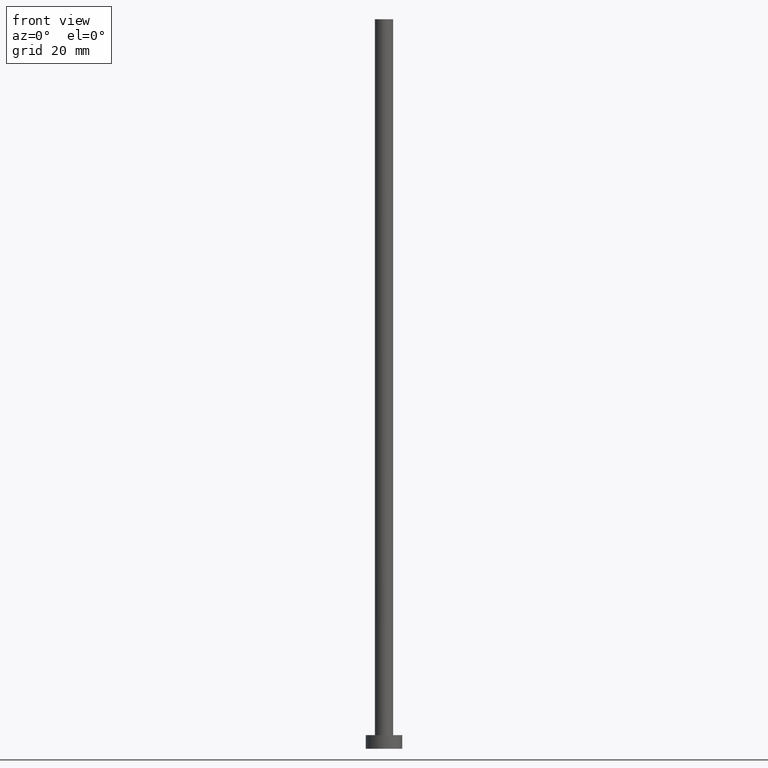
[diagram: clean part render]
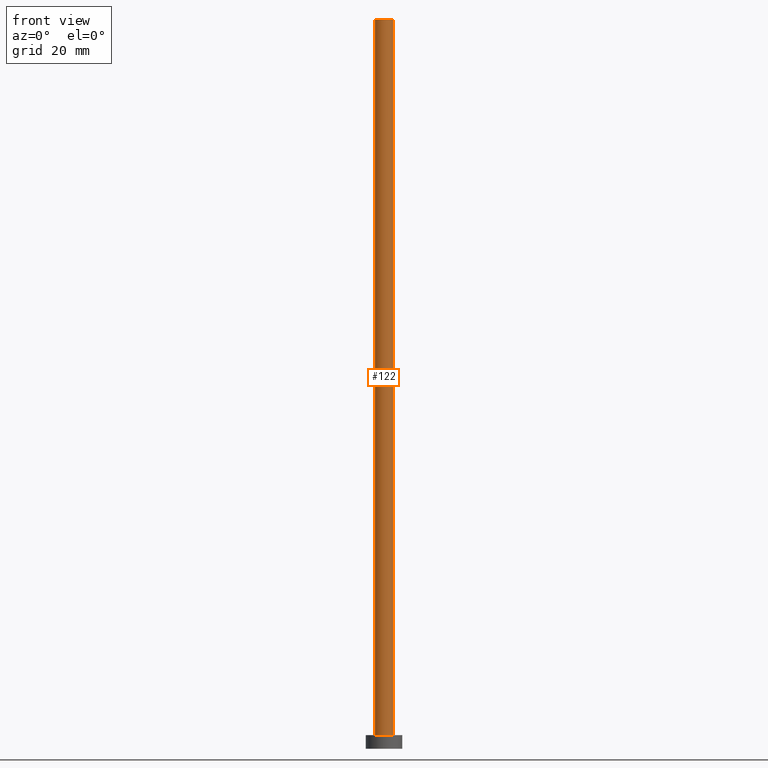
[diagram: same view with one face highlighted and labeled with its STEP entity id]
A machine part, front view. The second image highlights one B-rep face of the part: STEP entity #122.
In plain terms, the highlighted cylindrical surface (edge-blend (fillet) strip) has radius 2 mm, axis along (-0, -0, -1).
Its self-contained STEP definition (entity closure, byte-faithful):
#3 = DIRECTION ( 'NONE',  ( -0.000000000000000000, -0.000000000000000000, -1.000000000000000000 ) ) ;
#12 = DIRECTION ( 'NONE',  ( 1.000000000000000000, 0.000000000000000000, 0.000000000000000000 ) ) ;
#18 = DIRECTION ( 'NONE',  ( 0.000000000000000000, 0.000000000000000000, 1.000000000000000000 ) ) ;
#29 = ORIENTED_EDGE ( 'NONE', *, *, #139, .F. ) ;
#40 = DIRECTION ( 'NONE',  ( -0.000000000000000000, -0.000000000000000000, -1.000000000000000000 ) ) ;
#45 = CARTESIAN_POINT ( 'NONE',  ( 2.000000000000000000, 2.449293598294706414E-16, 160.0000000000000000 ) ) ;
#49 = CIRCLE ( 'NONE', #248, 2.000000000000000000 ) ;
#52 = EDGE_CURVE ( 'NONE', #92, #230, #61, .T. ) ;
#61 = CIRCLE ( 'NONE', #210, 2.000000000000000000 ) ;
#86 = CARTESIAN_POINT ( 'NONE',  ( -2.000000000000000000, 0.000000000000000000, 160.0000000000000000 ) ) ;
#88 = VERTEX_POINT ( 'NONE', #86 ) ;
#92 = VERTEX_POINT ( 'NONE', #166 ) ;
#102 = CARTESIAN_POINT ( 'NONE',  ( 0.000000000000000000, 0.000000000000000000, 3.000000000000000000 ) ) ;
#103 = EDGE_CURVE ( 'NONE', #88, #215, #49, .T. ) ;
#106 = CARTESIAN_POINT ( 'NONE',  ( 2.000000000000000000, 2.449293598294706414E-16, 160.0000000000000000 ) ) ;
#108 = ORIENTED_EDGE ( 'NONE', *, *, #52, .T. ) ;
#120 = AXIS2_PLACEMENT_3D ( 'NONE', #207, #228, #142 ) ;
#122 = ADVANCED_FACE ( 'NONE', ( #146 ), #246, .T. ) ;
#128 = CARTESIAN_POINT ( 'NONE',  ( -2.000000000000000000, 0.000000000000000000, 160.0000000000000000 ) ) ;
#139 = EDGE_CURVE ( 'NONE', #215, #230, #194, .T. ) ;
#142 = DIRECTION ( 'NONE',  ( -1.000000000000000000, 0.000000000000000000, 0.000000000000000000 ) ) ;
#145 = EDGE_CURVE ( 'NONE', #88, #92, #156, .T. ) ;
#146 = FACE_OUTER_BOUND ( 'NONE', #148, .T. ) ;
#148 = EDGE_LOOP ( 'NONE', ( #29, #149, #196, #108 ) ) ;
#149 = ORIENTED_EDGE ( 'NONE', *, *, #103, .F. ) ;
#152 = DIRECTION ( 'NONE',  ( 1.000000000000000000, 0.000000000000000000, 0.000000000000000000 ) ) ;
#156 = LINE ( 'NONE', #128, #175 ) ;
#166 = CARTESIAN_POINT ( 'NONE',  ( -2.000000000000000000, 0.000000000000000000, 3.000000000000000000 ) ) ;
#175 = VECTOR ( 'NONE', #3, 1000.000000000000000 ) ;
#185 = DIRECTION ( 'NONE',  ( 0.000000000000000000, 0.000000000000000000, 1.000000000000000000 ) ) ;
#190 = VECTOR ( 'NONE', #40, 1000.000000000000000 ) ;
#194 = LINE ( 'NONE', #106, #190 ) ;
#196 = ORIENTED_EDGE ( 'NONE', *, *, #145, .T. ) ;
#207 = CARTESIAN_POINT ( 'NONE',  ( 0.000000000000000000, 0.000000000000000000, 160.0000000000000000 ) ) ;
#210 = AXIS2_PLACEMENT_3D ( 'NONE', #102, #18, #152 ) ;
#215 = VERTEX_POINT ( 'NONE', #45 ) ;
#228 = DIRECTION ( 'NONE',  ( -0.000000000000000000, -0.000000000000000000, -1.000000000000000000 ) ) ;
#230 = VERTEX_POINT ( 'NONE', #241 ) ;
#241 = CARTESIAN_POINT ( 'NONE',  ( 2.000000000000000000, 2.449293598294706414E-16, 3.000000000000000000 ) ) ;
#246 = CYLINDRICAL_SURFACE ( 'NONE', #120, 2.000000000000000000 ) ;
#248 = AXIS2_PLACEMENT_3D ( 'NONE', #251, #185, #12 ) ;
#251 = CARTESIAN_POINT ( 'NONE',  ( 0.000000000000000000, 0.000000000000000000, 160.0000000000000000 ) ) ;